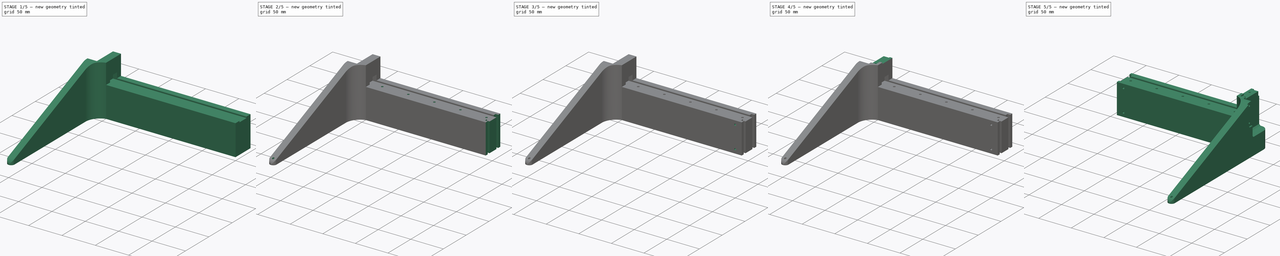
[diagram: build sequence overview — one tinted view per stage of 5, left to right]
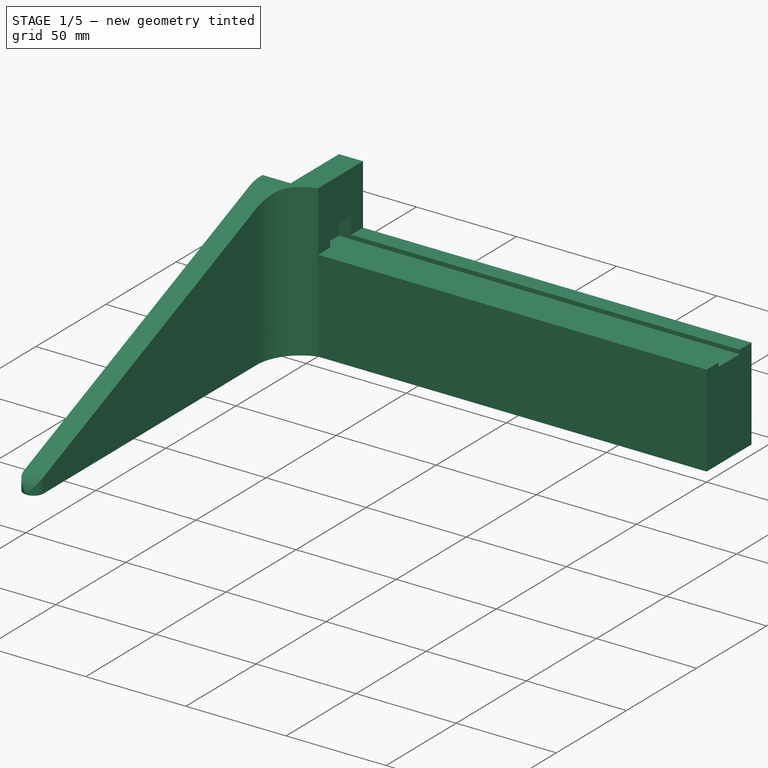
[diagram: stage 1 of 5 — iso view after this stage's code; geometry added in this stage tinted green]
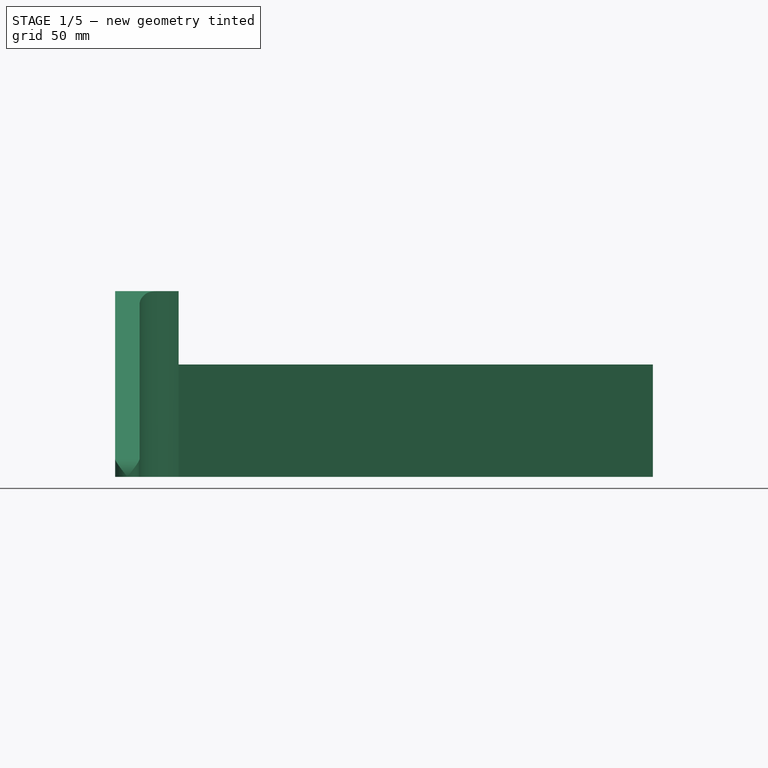
[diagram: stage 1 of 5 — front view after this stage's code; geometry added in this stage tinted green]
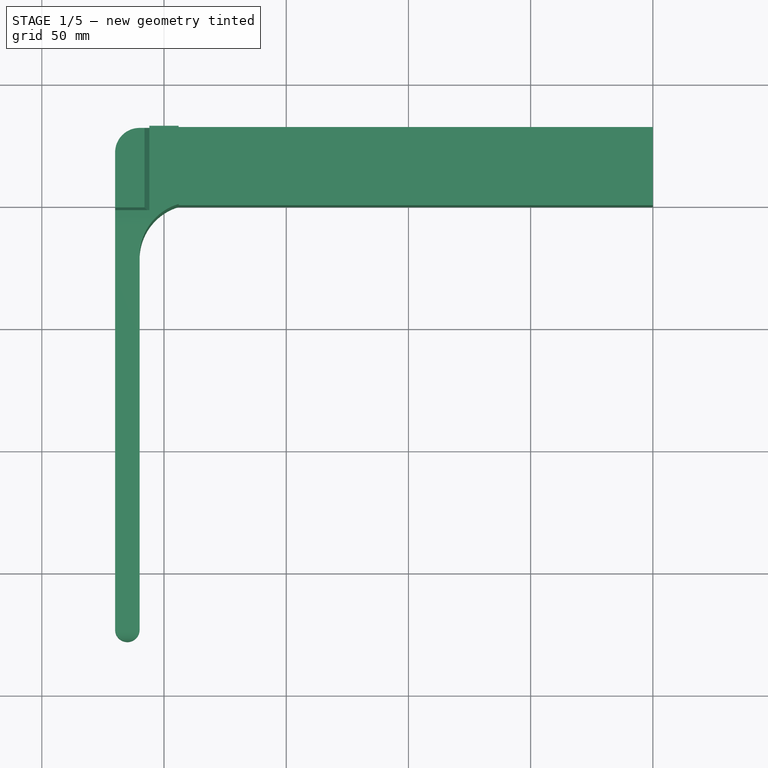
[diagram: stage 1 of 5 — top view after this stage's code; geometry added in this stage tinted green]
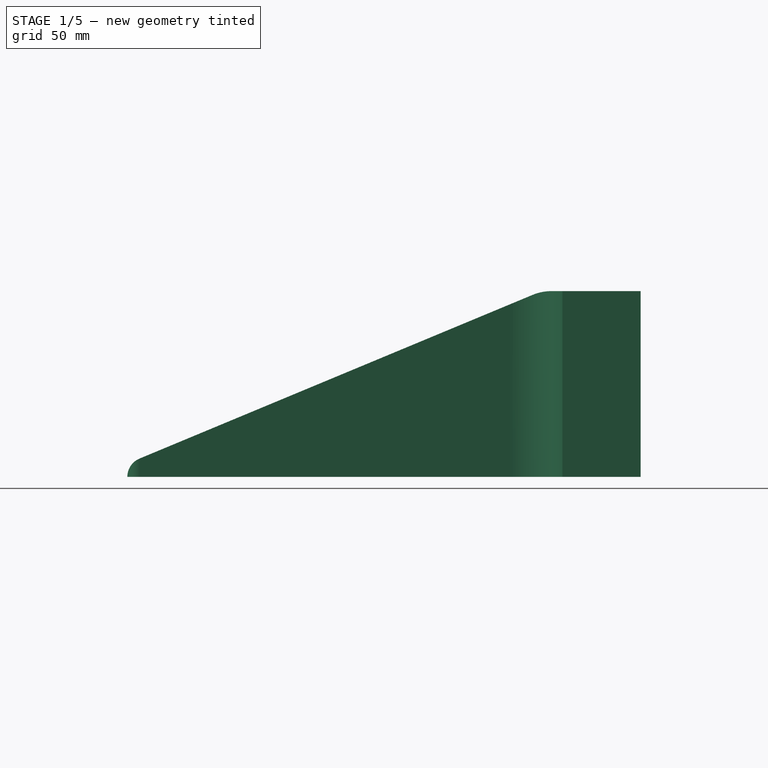
[diagram: stage 1 of 5 — right view after this stage's code; geometry added in this stage tinted green]
FCSTD DOCUMENT  (FreeCAD 0.18.3R)
Label: Base Right
License: All rights reserved
LicenseURL: http://en.wikipedia.org/wiki/All_rights_reserved
objects: Sketcher::SketchObject×20, PartDesign::Pocket×17, PartDesign::Pad×3, Spreadsheet::Sheet×1, PartDesign::Body×1, PartDesign::Chamfer×1, Part::Mirroring×1
note: 63 computed .brp shape members not serialized (recipe doc carries the construction recipe); baked Part::Feature solids carry a one-line shape summary decoded from their .brp

FEATURE [Sketcher::SketchObject] Sketch  label="Sketch Base"
  MapMode = 5
  Support = -> [XY_Plane]
  sketch-geometry (4):
    g0: LineSegment StartX=0 StartY=0 StartZ=0 EndX=0 EndY=32 EndZ=0
    g1: LineSegment StartX=0 StartY=32 StartZ=0 EndX=-210 EndY=32 EndZ=0
    g2: LineSegment StartX=-210 StartY=32 StartZ=0 EndX=-210 EndY=0 EndZ=0
    g3: LineSegment StartX=-210 StartY=0 StartZ=0 EndX=0 EndY=0 EndZ=0
  constraints (11):
    c: Coincident(g-1,g0)
    c: PointOnObject(g0,g-2)
    c: Coincident(g0,g1)
    c: Horizontal(g1)
    c: Coincident(g1,g2)
    c: PointOnObject(g2,g-1)
    c: Vertical(g2)
    c: Coincident(g2,g3)
    c: Coincident(g3,g0)
    c: Distance(g0) = 32
    c: Distance(g3) = 210
FEATURE [PartDesign::Pad] Pad  label="Base"
  Length = 46
  Length2 = 100
  Profile = -> Sketch
  Type = 0
FEATURE [Sketcher::SketchObject] Sketch001  label="Sketch Rail Cut"
  ExternalGeometry = -> [Pad]
  MapMode = 5
  Placement = pos=(0,0,46) rot=(0,0,1;0rad)
  Support = -> [Pad]
  sketch-geometry (6):
    g0: LineSegment StartX=-194 StartY=8.5 StartZ=0 EndX=0 EndY=8.5 EndZ=0
    g1: LineSegment StartX=0 StartY=23.5 StartZ=0 EndX=-194 EndY=23.5 EndZ=0
    g2: LineSegment StartX=-194 StartY=23.5 StartZ=0 EndX=-194 EndY=8.5 EndZ=0
    g3: LineSegment StartX=0 StartY=23.5 StartZ=0 EndX=0 EndY=8.5 EndZ=0
    g4: LineSegment [constr] StartX=0 StartY=23.5 StartZ=0 EndX=0 EndY=32 EndZ=0
    g5: LineSegment [constr] StartX=0 StartY=0 StartZ=0 EndX=0 EndY=8.5 EndZ=0
  constraints (16):
    c: PointOnObject(g0,g-2)
    c: Horizontal(g0)
    c: PointOnObject(g1,g-2)
    c: Horizontal(g1)
    c: Equal(g0,g1)
    c: Distance(g0,g1) = 15
    c: Distance(g0) = 194
    c: Coincident(g2,g1)
    c: Coincident(g2,g0)
    c: Coincident(g3,g1)
    c: Coincident(g3,g0)
    c: Coincident(g4,g1)
    c: Coincident(g4,g-3)
    c: Coincident(g5,g-1)
    c: Coincident(g5,g0)
    c: Equal(g4,g5)
FEATURE [Sketcher::SketchObject] Sketch002  label="Sketch Rail End"
  ExternalGeometry = -> [Pad]
  MapMode = 5
  Placement = pos=(0,0,46) rot=(0,0,1;0rad)
  Support = -> [Pad]
  sketch-geometry (4):
    g0: LineSegment StartX=-210 StartY=32 StartZ=0 EndX=-194 EndY=32 EndZ=0
    g1: LineSegment StartX=-194 StartY=32 StartZ=0 EndX=-194 EndY=0 EndZ=0
    g2: LineSegment StartX=-194 StartY=0 StartZ=0 EndX=-210 EndY=0 EndZ=0
    g3: LineSegment StartX=-210 StartY=0 StartZ=0 EndX=-210 EndY=32 EndZ=0
  constraints (11):
    c: Coincident(g0,g1)
    c: Coincident(g1,g2)
    c: Coincident(g2,g3)
    c: Coincident(g3,g0)
    c: Horizontal(g0)
    c: Horizontal(g2)
    c: Vertical(g1)
    c: Vertical(g3)
    c: Coincident(g0,g-3)
    c: PointOnObject(g2,g-1)
    c: Distance(g2) = 16
FEATURE [PartDesign::Pad] Pad002  label="Rail End"
  BaseFeature = -> Pad
  Length = 30
  Length2 = 100
  Profile = -> Sketch002
  Type = 0
FEATURE [PartDesign::Pocket] Pocket001  label="Rail Cut"
  BaseFeature = -> Pad002
  Length = 2
  Length2 = 100
  Profile = -> Sketch001
  Type = 0
FEATURE [Sketcher::SketchObject] Sketch003  label="Sketch Rail End Cut"
  ExternalGeometry = -> [Pocket001]
  MapMode = 5
  Placement = pos=(-194,0,0) rot=(0.57735,0.57735,0.57735;2.0944rad)
  Support = -> [Pocket001]
  sketch-geometry (4):
    g0: LineSegment StartX=8.5 StartY=44 StartZ=0 EndX=23.5 EndY=44 EndZ=0
    g1: LineSegment StartX=23.5 StartY=44 StartZ=0 EndX=23.5 EndY=54.2 EndZ=0
    g2: LineSegment StartX=23.5 StartY=54.2 StartZ=0 EndX=8.5 EndY=54.2 EndZ=0
    g3: LineSegment StartX=8.5 StartY=54.2 StartZ=0 EndX=8.5 EndY=44 EndZ=0
  constraints (10):
    c: Coincident(g0,g1)
    c: Coincident(g1,g2)
    c: Coincident(g2,g3)
    c: Coincident(g3,g0)
    c: Horizontal(g2)
    c: Vertical(g1)
    c: Vertical(g3)
    c: Coincident(g0,g-3)
    c: Coincident(g0,g-3)
    c: Distance(g1) = 10.2
FEATURE [PartDesign::Pocket] Pocket  label="Rail End Cut"
  BaseFeature = -> Pocket001
  Length = 6.2
  Length2 = 100
  Profile = -> Sketch003
  Type = 0
FEATURE [Spreadsheet::Sheet] Spreadsheet  label="Screws"
  cells = A1=Screw Type; B1=Length; D1=Diameter Loose; F1=Diameter Tight; H1=Width Across Flats; A2=M3 Tapping; B2=m3tl; C2(m3tl)==12mm; D2=m3tD; E2(m3tD)==3.4mm; F2=m3td; G2(m3td)==2.8mm; A3=M3x30; B3=m3l; C3(m3l)==30mm; D3=m3D; E3(m3D)==3.2mm; F3=m3d; G3(m3d)==2.8mm; A4=M3 Nut; H4=m3S; I4(m3S)==5.6mm
FEATURE [PartDesign::Body] Body  label="Base Left"
  Group = -> [Sketch,Pad,Sketch001,Sketch002,Pad002,Pocket001,Sketch003,Pocket,Sketch005,Sketch006,Pad003,Pocket002,Sketch007,Pocket003,Chamfer,Sketch008,Pocket004,Sketch009,Pocket005,Sketch010,Pocket006,Sketch011,Pocket007,Sketch012,Pocket008,Sketch013,Pocket009,Sketch014,Pocket010,Sketch015,Pocket011,Sketch027,Pocket012,Sketch028,Pocket013,Sketch029,Pocket014,Sketch030,Pocket015,Sketch031,Pocket016]
  Origin = -> Origin
  Tip = -> Pocket016
FEATURE [Sketcher::SketchObject] Sketch005  label="Sketch Motor Cut"
  ExternalGeometry = -> [Pocket]
  MapMode = 5
  Placement = pos=(0,0,76) rot=(0,0,1;0rad)
  Support = -> [Pad003]
  sketch-geometry (6):
    g0: LineSegment StartX=-253 StartY=44.5 StartZ=0 EndX=-206 EndY=44.5 EndZ=0
    g1: LineSegment StartX=-206 StartY=44.5 StartZ=0 EndX=-206 EndY=-2.5 EndZ=0
    g2: LineSegment StartX=-206 StartY=-2.5 StartZ=0 EndX=-253 EndY=-2.5 EndZ=0
    g3: LineSegment StartX=-253 StartY=-2.5 StartZ=0 EndX=-253 EndY=44.5 EndZ=0
    g4: LineSegment [constr] StartX=-206 StartY=16 StartZ=0 EndX=-194 EndY=16 EndZ=0
    g5: LineSegment [constr] StartX=-206 StartY=21 StartZ=0 EndX=-194 EndY=21 EndZ=0
  constraints (18):
    c: Coincident(g0,g1)
    c: Coincident(g1,g2)
    c: Coincident(g2,g3)
    c: Coincident(g3,g0)
    c: Horizontal(g0)
    c: Horizontal(g2)
    c: Vertical(g1)
    c: Vertical(g3)
    c: Distance(g3) = 47
    c: Distance(g-3,g1) = 12
    c: Equal(g0,g3)
    c: PointOnObject(g4,g1)
    c: PointOnObject(g5,g1)
    c: PointOnObject(g5,g-3)
    c: Symmetric(g-3,g-3,g4)
    c: Symmetric(g1,g0,g5)
    c: PointOnObject(g4,g-3)
    c: Distance(g5,g4) = 5
FEATURE [Sketcher::SketchObject] Sketch006  label="Sketch Base Leg"
  ExternalGeometry = -> [Pocket,Sketch005]
  MapMode = 5
  Support = -> [XY_Plane]
  sketch-geometry (8):
    g0: ArcOfCircle CenterX=-210 CenterY=22 CenterZ=0 NormalX=0 NormalY=0 NormalZ=1 AngleXU=0 Radius=10 StartAngle=1.5708 EndAngle=3.14159
    g1: LineSegment StartX=-220 StartY=22 StartZ=0 EndX=-220 EndY=-173 EndZ=0
    g2: LineSegment StartX=-210 StartY=-173 StartZ=0 EndX=-210 EndY=-21.386 EndZ=0
    g3: LineSegment StartX=-210 StartY=32 StartZ=0 EndX=-210 EndY=0 EndZ=0
    g4: LineSegment StartX=-210 StartY=0 StartZ=0 EndX=-194 EndY=-7.1e-15 EndZ=0
    g5: ArcOfCircle CenterX=-187.708 CenterY=-21.386 CenterZ=0 NormalX=0 NormalY=0 NormalZ=1 AngleXU=0 Radius=22.2925 StartAngle=1.85696 EndAngle=3.14159
    g6: LineSegment [constr] StartX=-206 StartY=-2.5 StartZ=0 EndX=-203.217 EndY=-5.37321 EndZ=0
    g7: ArcOfCircle CenterX=-215 CenterY=-173 CenterZ=0 NormalX=0 NormalY=0 NormalZ=1 AngleXU=0 Radius=5 StartAngle=3.14159 EndAngle=6.28319
  constraints (22):
    c: PointOnObject(g0,g-3)
    c: Coincident(g0,g-5)
    c: Horizontal(g0,g0)
    c: Distance(g0,g0) = 10
    c: Tangent(g0,g1) = -1.5708
    c: Vertical(g2)
    c: Distance(g1) = 195
    c: Vertical(g2,g-4)
    c: Coincident(g3,g0)
    c: Coincident(g3,g-4)
    c: Coincident(g4,g3)
    c: Coincident(g5,g4)
    c: Coincident(g4,g-4)
    c: Tangent(g5,g2) = 1.5708
    c: Coincident(g6,g-6)
    c: PointOnObject(g6,g5)
    c: Perpendicular(g5,g6)
    c: Distance(g6) = 4
    c: Coincident(g7,g1)
    c: Coincident(g7,g2)
    c: Horizontal(g1,g7)
    c: Horizontal(g7,g2)
FEATURE [PartDesign::Pad] Pad003  label="Base Leg"
  BaseFeature = -> Pocket
  Length = 10
  Length2 = 100
  Profile = -> Sketch006
  Type = 3
  UpToFace = -> Pocket [Face18]
FEATURE [PartDesign::Pocket] Pocket002  label="Motor Cut"
  BaseFeature = -> Pad003
  Length = 50
  Length2 = 100
  Profile = -> Sketch005
  Type = 0
FEATURE [Sketcher::SketchObject] Sketch007  label="Sketch Leg Profile Cut"
  ExternalGeometry = -> [Pocket002]
  MapMode = 5
  Placement = pos=(-220,0,0) rot=(0.57735,-0.57735,-0.57735;2.0944rad)
  Support = -> [Pocket002]
  sketch-geometry (5):
    g0: LineSegment StartX=178 StartY=76 StartZ=0 EndX=178 EndY=0 EndZ=0
    g1: ArcOfCircle CenterX=169.878 CenterY=0 CenterZ=0 NormalX=0 NormalY=0 NormalZ=1 AngleXU=0 Radius=8.12242 StartAngle=0 EndAngle=1.17622
    g2: LineSegment StartX=12.1884 StartY=74.4632 StartZ=0 EndX=173 EndY=7.49828 EndZ=0
    g3: LineSegment StartX=178 StartY=76 StartZ=0 EndX=4.5 EndY=76 EndZ=0
    g4: ArcOfCircle CenterX=4.5 CenterY=56 CenterZ=0 NormalX=0 NormalY=0 NormalZ=1 AngleXU=0 Radius=20 StartAngle=1.17622 EndAngle=1.5708
  constraints (14):
    c: PointOnObject(g0,g-1)
    c: Vertical(g0)
    c: PointOnObject(g1,g-1)
    c: Coincident(g1,g0)
    c: Tangent(g2,g1) = 1.5708
    c: PointOnObject(g1,g-4)
    c: Coincident(g3,g0)
    c: PointOnObject(g3,g-3)
    c: Horizontal(g3)
    c: Tangent(g4,g2) = 1.5708
    c: Tangent(g4,g3) = -1.5708
    c: Radius(g4) = 20
    c: Distance(g-3,g3) = 2
    c: Distance(g-4,g0) = 5
FEATURE [PartDesign::Pocket] Pocket003  label="Leg Profile Cut"
  BaseFeature = -> Pocket002
  Length = 10
  Length2 = 100
  Profile = -> Sketch007
  Type = 1
FEATURE [PartDesign::Chamfer] Chamfer  label="Motor Cut Chamfer"
  Base = -> Pocket003 [Edge39,Edge38]
  BaseFeature = -> Pocket003
  Size = 2
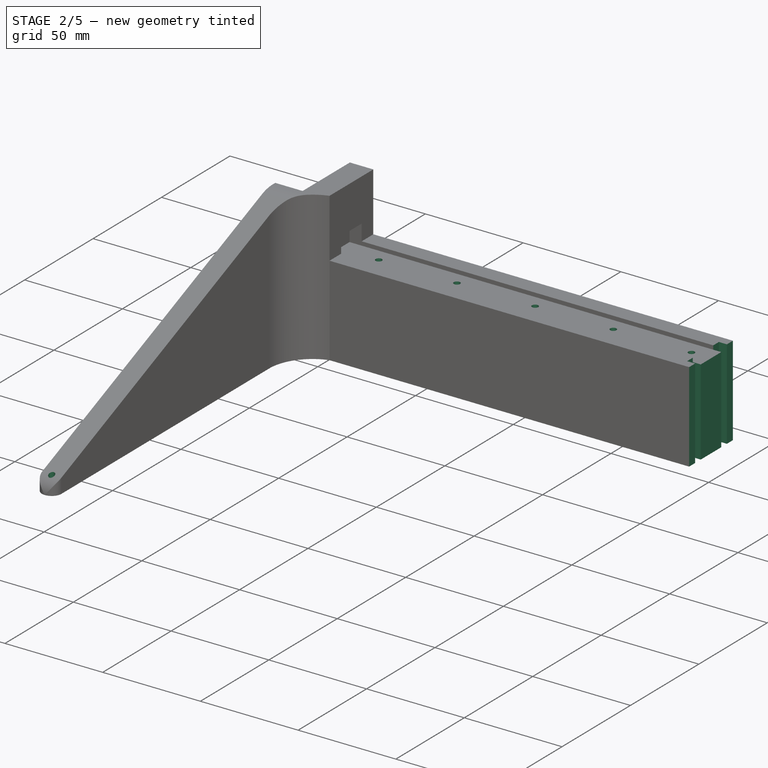
[diagram: stage 2 of 5 — iso view after this stage's code; geometry added in this stage tinted green]
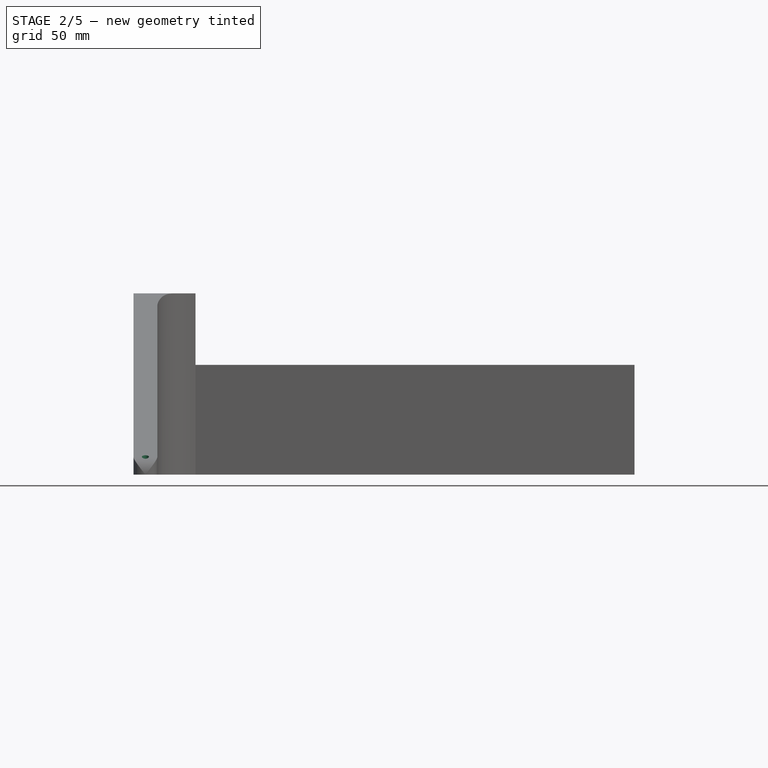
[diagram: stage 2 of 5 — front view after this stage's code; geometry added in this stage tinted green]
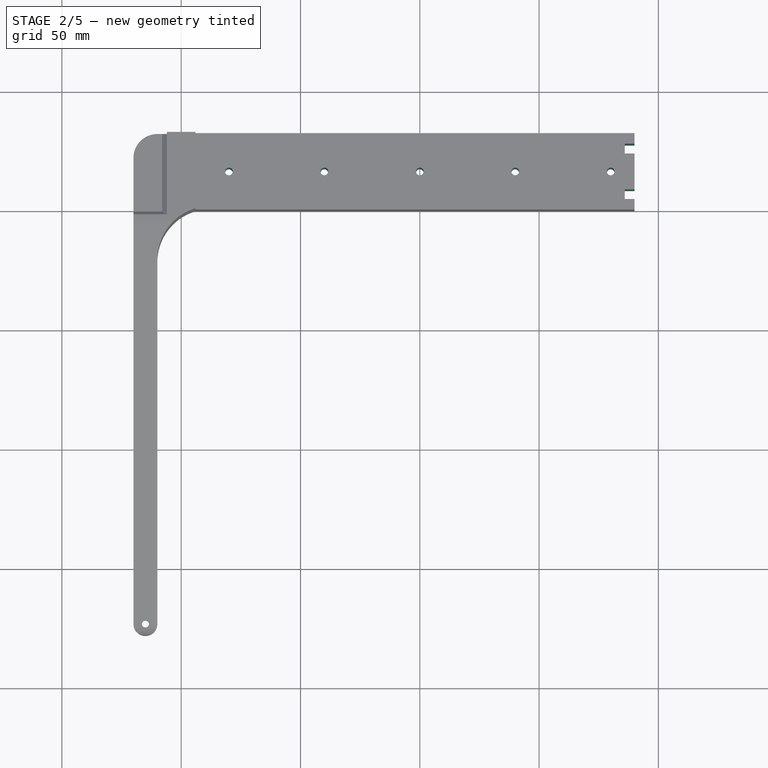
[diagram: stage 2 of 5 — top view after this stage's code; geometry added in this stage tinted green]
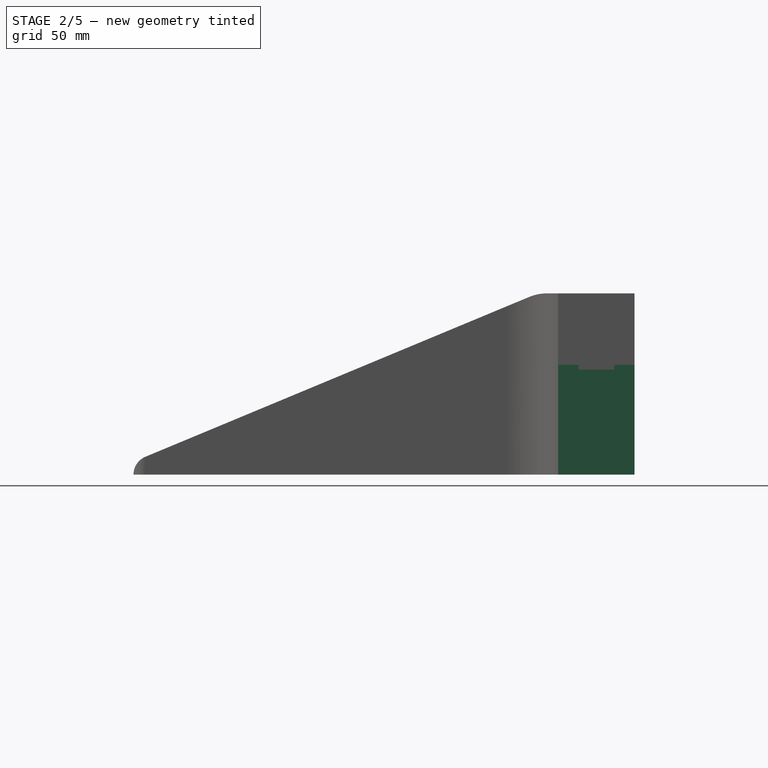
[diagram: stage 2 of 5 — right view after this stage's code; geometry added in this stage tinted green]
FEATURE [Sketcher::SketchObject] Sketch008  label="Sketch Rail Screw Holes"
  ExternalGeometry = -> [Chamfer]
  MapMode = 5
  Placement = pos=(0,0,44) rot=(0,0,1;0rad)
  Support = -> [Chamfer]
  expr: Constraints[20] = Screws.m3D
  sketch-geometry (9):
    g0: Circle CenterX=-20 CenterY=16 CenterZ=0 NormalX=0 NormalY=0 NormalZ=1 AngleXU=0 Radius=1.6
    g1: Circle CenterX=-60 CenterY=16 CenterZ=0 NormalX=0 NormalY=0 NormalZ=1 AngleXU=0 Radius=1.6
    g2: Circle CenterX=-100 CenterY=16 CenterZ=0 NormalX=0 NormalY=0 NormalZ=1 AngleXU=0 Radius=1.6
    g3: Circle CenterX=-140 CenterY=16 CenterZ=0 NormalX=0 NormalY=0 NormalZ=1 AngleXU=0 Radius=1.6
    g4: Circle CenterX=-180 CenterY=16 CenterZ=0 NormalX=0 NormalY=0 NormalZ=1 AngleXU=0 Radius=1.6
    g5: LineSegment [constr] StartX=-180 StartY=16 StartZ=0 EndX=-140 EndY=16 EndZ=0
    g6: LineSegment [constr] StartX=-140 StartY=16 StartZ=0 EndX=-100 EndY=16 EndZ=0
    g7: LineSegment [constr] StartX=-100 StartY=16 StartZ=0 EndX=-60 EndY=16 EndZ=0
    g8: LineSegment [constr] StartX=-60 StartY=16 StartZ=0 EndX=-20 EndY=16 EndZ=0
  constraints (22):
    c: Horizontal(g4,g3)
    c: Horizontal(g3,g2)
    c: Horizontal(g2,g1)
    c: Equal(g4,g3)
    c: Equal(g3,g2)
    c: Equal(g2,g1)
    c: Equal(g1,g0)
    c: Coincident(g5,g4)
    c: Coincident(g5,g3)
    c: Coincident(g6,g3)
    c: Coincident(g6,g2)
    c: Coincident(g7,g2)
    c: Coincident(g7,g1)
    c: Coincident(g8,g1)
    c: Coincident(g8,g0)
    c: Equal(g8,g7)
    c: Equal(g7,g6)
    c: Equal(g6,g5)
    c: Distance(g0,g-2) = 20
    c: Distance(g8) = 40
    c: Diameter(g0) = 3.2
    c: Symmetric(g-4,g-3,g8)
FEATURE [PartDesign::Pocket] Pocket004  label="Rail Screw Holes"
  BaseFeature = -> Chamfer
  Length = 5
  Length2 = 100
  Profile = -> Sketch008
  Type = 1
FEATURE [Sketcher::SketchObject] Sketch009  label="Sketch Nut Cuts"
  ExternalGeometry = -> [Pocket004]
  MapMode = 5
  Placement = pos=(0,0,0) rot=(1,0,0;3.14159rad)
  Support = -> [Pocket004]
  expr: Constraints[99] = Screws.m3S
  sketch-geometry (35):
    g0: LineSegment StartX=-183.233 StartY=-16 StartZ=0 EndX=-181.617 EndY=-18.8 EndZ=0
    g1: LineSegment StartX=-181.617 StartY=-18.8 StartZ=0 EndX=-178.383 EndY=-18.8 EndZ=0
    g2: LineSegment StartX=-178.383 StartY=-18.8 StartZ=0 EndX=-176.767 EndY=-16 EndZ=0
    g3: LineSegment StartX=-176.767 StartY=-16 StartZ=0 EndX=-178.383 EndY=-13.2 EndZ=0
    g4: LineSegment StartX=-178.383 StartY=-13.2 StartZ=0 EndX=-181.617 EndY=-13.2 EndZ=0
    g5: LineSegment StartX=-181.617 StartY=-13.2 StartZ=0 EndX=-183.233 EndY=-16 EndZ=0
    g6: Circle [constr] CenterX=-180 CenterY=-16 CenterZ=0 NormalX=0 NormalY=0 NormalZ=1 AngleXU=0 Radius=3.23316
    g7: LineSegment StartX=-143.233 StartY=-16 StartZ=0 EndX=-141.617 EndY=-18.8 EndZ=0
    g8: LineSegment StartX=-141.617 StartY=-18.8 StartZ=0 EndX=-138.383 EndY=-18.8 EndZ=0
    g9: LineSegment StartX=-138.383 StartY=-18.8 StartZ=0 EndX=-136.767 EndY=-16 EndZ=0
    g10: LineSegment StartX=-136.767 StartY=-16 StartZ=0 EndX=-138.383 EndY=-13.2 EndZ=0
    g11: LineSegment StartX=-138.383 StartY=-13.2 StartZ=0 EndX=-141.617 EndY=-13.2 EndZ=0
    g12: LineSegment StartX=-141.617 StartY=-13.2 StartZ=0 EndX=-143.233 EndY=-16 EndZ=0
    g13: Circle [constr] CenterX=-140 CenterY=-16 CenterZ=0 NormalX=0 NormalY=0 NormalZ=1 AngleXU=0 Radius=3.23316
    g14: LineSegment StartX=-103.233 StartY=-16 StartZ=0 EndX=-101.617 EndY=-18.8 EndZ=0
    g15: LineSegment StartX=-101.617 StartY=-18.8 StartZ=0 EndX=-98.3834 EndY=-18.8 EndZ=0
    g16: LineSegment StartX=-98.3834 StartY=-18.8 StartZ=0 EndX=-96.7668 EndY=-16 EndZ=0
    g17: LineSegment StartX=-96.7668 StartY=-16 StartZ=0 EndX=-98.3834 EndY=-13.2 EndZ=0
    g18: LineSegment StartX=-98.3834 StartY=-13.2 StartZ=0 EndX=-101.617 EndY=-13.2 EndZ=0
    g19: LineSegment StartX=-101.617 StartY=-13.2 StartZ=0 EndX=-103.233 EndY=-16 EndZ=0
    g20: Circle [constr] CenterX=-100 CenterY=-16 CenterZ=0 NormalX=0 NormalY=0 NormalZ=1 AngleXU=0 Radius=3.23316
    g21: LineSegment StartX=-63.2332 StartY=-16 StartZ=0 EndX=-61.6166 EndY=-18.8 EndZ=0
    g22: LineSegment StartX=-61.6166 StartY=-18.8 StartZ=0 EndX=-58.3834 EndY=-18.8 EndZ=0
    g23: LineSegment StartX=-58.3834 StartY=-18.8 StartZ=0 EndX=-56.7668 EndY=-16 EndZ=0
    g24: LineSegment StartX=-56.7668 StartY=-16 StartZ=0 EndX=-58.3834 EndY=-13.2 EndZ=0
    g25: LineSegment StartX=-58.3834 StartY=-13.2 StartZ=0 EndX=-61.6166 EndY=-13.2 EndZ=0
    g26: LineSegment StartX=-61.6166 StartY=-13.2 StartZ=0 EndX=-63.2332 EndY=-16 EndZ=0
    g27: Circle [constr] CenterX=-60 CenterY=-16 CenterZ=0 NormalX=0 NormalY=0 NormalZ=1 AngleXU=0 Radius=3.23316
    g28: LineSegment StartX=-23.2332 StartY=-16 StartZ=0 EndX=-21.6166 EndY=-18.8 EndZ=0
    g29: LineSegment StartX=-21.6166 StartY=-18.8 StartZ=0 EndX=-18.3834 EndY=-18.8 EndZ=0
    g30: LineSegment StartX=-18.3834 StartY=-18.8 StartZ=0 EndX=-16.7668 EndY=-16 EndZ=0
    g31: LineSegment StartX=-16.7668 StartY=-16 StartZ=0 EndX=-18.3834 EndY=-13.2 EndZ=0
    g32: LineSegment StartX=-18.3834 StartY=-13.2 StartZ=0 EndX=-21.6166 EndY=-13.2 EndZ=0
    g33: LineSegment StartX=-21.6166 StartY=-13.2 StartZ=0 EndX=-23.2332 EndY=-16 EndZ=0
    g34: Circle [constr] CenterX=-20 CenterY=-16 CenterZ=0 NormalX=0 NormalY=0 NormalZ=1 AngleXU=0 Radius=3.23316
  constraints (80):
    c: Coincident(g0,g1)
    c: Coincident(g1,g2)
    c: Coincident(g2,g3)
    c: Coincident(g3,g4)
    c: Coincident(g4,g5)
    c: Coincident(g5,g0)
    c: Equal(g0, g1-g5) x5
    c: PointOnObject(g0,g6)
    c: PointOnObject(g1,g6)
    c: PointOnObject(g2,g6)
    c: PointOnObject(g3,g6)
    c: PointOnObject(g4,g6)
    c: PointOnObject(g5,g6)
    c: Coincident(g6,g-3)
    c: Coincident(g7,g8)
    c: Coincident(g8,g9)
    c: Coincident(g9,g10)
    c: Coincident(g10,g11)
    c: Coincident(g11,g12)
    c: Coincident(g12,g7)
    c: Equal(g7, g8-g12) x5
    c: PointOnObject(g7,g13)
    c: PointOnObject(g8,g13)
    c: PointOnObject(g9,g13)
    c: PointOnObject(g10,g13)
    c: PointOnObject(g11,g13)
    c: PointOnObject(g12,g13)
    c: Coincident(g13,g-4)
    c: Coincident(g14,g15)
    c: Coincident(g15,g16)
    c: Coincident(g16,g17)
    c: Coincident(g17,g18)
    c: Coincident(g18,g19)
    c: Coincident(g19,g14)
    c: Equal(g14, g15-g19) x5
    c: PointOnObject(g14,g20)
    c: PointOnObject(g15,g20)
    c: PointOnObject(g16,g20)
    c: PointOnObject(g17,g20)
    c: PointOnObject(g18,g20)
    c: PointOnObject(g19,g20)
    c: Coincident(g20,g-5)
    c: Coincident(g21,g22)
    c: Coincident(g22,g23)
    c: Coincident(g23,g24)
    c: Coincident(g24,g25)
    c: Coincident(g25,g26)
    c: Coincident(g26,g21)
    c: Equal(g21, g22-g26) x5
    c: PointOnObject(g21,g27)
    c: PointOnObject(g22,g27)
    c: PointOnObject(g23,g27)
    c: PointOnObject(g24,g27)
    c: PointOnObject(g25,g27)
    c: PointOnObject(g26,g27)
    c: Coincident(g27,g-6)
    c: Coincident(g28,g29)
    c: Coincident(g29,g30)
    c: Coincident(g30,g31)
    c: Coincident(g31,g32)
    c: Coincident(g32,g33)
    c: Coincident(g33,g28)
    c: Equal(g28, g29-g33) x5
    c: PointOnObject(g28,g34)
    c: PointOnObject(g29,g34)
    c: PointOnObject(g30,g34)
    c: PointOnObject(g31,g34)
    c: PointOnObject(g32,g34)
    c: PointOnObject(g33,g34)
    c: Coincident(g34,g-7)
    c: Horizontal(g1)
    c: Horizontal(g8)
    c: Horizontal(g15)
    c: Horizontal(g22)
    c: Horizontal(g29)
    c: Equal(g29,g22)
    c: Equal(g22,g15)
    c: Equal(g15,g8)
    c: Equal(g8,g1)
    c: Distance(g4,g1) = 5.6
FEATURE [PartDesign::Pocket] Pocket005  label="Nut Cuts"
  BaseFeature = -> Pocket004
  Length = 3
  Length2 = 100
  Profile = -> Sketch009
  Type = 0
FEATURE [Sketcher::SketchObject] Sketch010  label="Sketch Middle Cut"
  ExternalGeometry = -> [Pocket005]
  MapMode = 5
  Placement = pos=(0,0,0) rot=(1,0,0;3.14159rad)
  Support = -> [Pocket005]
  sketch-geometry (12):
    g0: LineSegment StartX=0 StartY=0 StartZ=0 EndX=0 EndY=-32 EndZ=0
    g1: LineSegment StartX=0 StartY=-32 StartZ=0 EndX=-10 EndY=-32 EndZ=0
    g2: LineSegment StartX=-10 StartY=-32 StartZ=0 EndX=-10 EndY=-27.6 EndZ=0
    g3: LineSegment StartX=-10 StartY=-27.6 StartZ=0 EndX=-14.1 EndY=-27.6 EndZ=0
    g4: LineSegment StartX=-14.1 StartY=-27.6 StartZ=0 EndX=-14.1 EndY=-23.5 EndZ=0
    g5: LineSegment StartX=-14.1 StartY=-23.5 StartZ=0 EndX=-10 EndY=-23.5 EndZ=0
    g6: LineSegment StartX=-10 StartY=-23.5 StartZ=0 EndX=-10 EndY=-8.5 EndZ=0
    g7: LineSegment StartX=-10 StartY=-8.5 StartZ=0 EndX=-14.1 EndY=-8.5 EndZ=0
    g8: LineSegment StartX=-14.1 StartY=-8.5 StartZ=0 EndX=-14.1 EndY=-4.4 EndZ=0
    g9: LineSegment StartX=-14.1 StartY=-4.4 StartZ=0 EndX=-10 EndY=-4.4 EndZ=0
    g10: LineSegment StartX=-10 StartY=-4.4 StartZ=0 EndX=-10 EndY=0 EndZ=0
    g11: LineSegment StartX=-10 StartY=0 StartZ=0 EndX=0 EndY=0 EndZ=0
  constraints (34):
    c: Coincident(g-1,g0)
    c: Coincident(g0,g-3)
    c: Coincident(g0,g1)
    c: PointOnObject(g1,g-3)
    c: Coincident(g1,g2)
    c: Vertical(g2)
    c: Coincident(g2,g3)
    c: Horizontal(g3)
    c: Coincident(g3,g4)
    c: Vertical(g4)
    c: Coincident(g4,g5)
    c: Horizontal(g5)
    c: Coincident(g5,g6)
    c: Vertical(g6)
    c: Coincident(g6,g7)
    c: Horizontal(g7)
    c: Coincident(g7,g8)
    c: Vertical(g8)
    c: Coincident(g8,g9)
    c: Horizontal(g9)
    c: Coincident(g9,g10)
    c: PointOnObject(g10,g-1)
    c: Vertical(g10)
    c: Coincident(g10,g11)
    c: Coincident(g11,g0)
    c: Vertical(g9,g6)
    c: Vertical(g6,g2)
    c: Vertical(g7,g4)
    c: Equal(g8,g4)
    c: Equal(g10,g2)
    c: Distance(g1) = 10
    c: Distance(g4) = 4.1
    c: Equal(g4,g3)
    c: Distance(g6) = 15
FEATURE [PartDesign::Pocket] Pocket006  label="Middle Cut"
  BaseFeature = -> Pocket005
  Length = 5
  Length2 = 100
  Profile = -> Sketch010
  Type = 1
FEATURE [Sketcher::SketchObject] Sketch011  label="Sketch Bottom Stand Holes"
  ExternalGeometry = -> [Pocket006]
  MapMode = 5
  Placement = pos=(0,0,0) rot=(1,0,0;3.14159rad)
  Support = -> [Pocket006]
  sketch-geometry (2):
    g0: Circle CenterX=-215 CenterY=173 CenterZ=0 NormalX=0 NormalY=0 NormalZ=1 AngleXU=0 Radius=1.5
    g1: Circle CenterX=-210 CenterY=-22 CenterZ=0 NormalX=0 NormalY=0 NormalZ=1 AngleXU=0 Radius=1.5
  constraints (4):
    c: Coincident(g0,g-3)
    c: Coincident(g1,g-4)
    c: Equal(g1,g0)
    c: Diameter(g0) = 3
FEATURE [PartDesign::Pocket] Pocket007  label="Bottom Stand Holes"
  BaseFeature = -> Pocket006
  Length = 25.6
  Length2 = 100
  Profile = -> Sketch011
  Type = 0
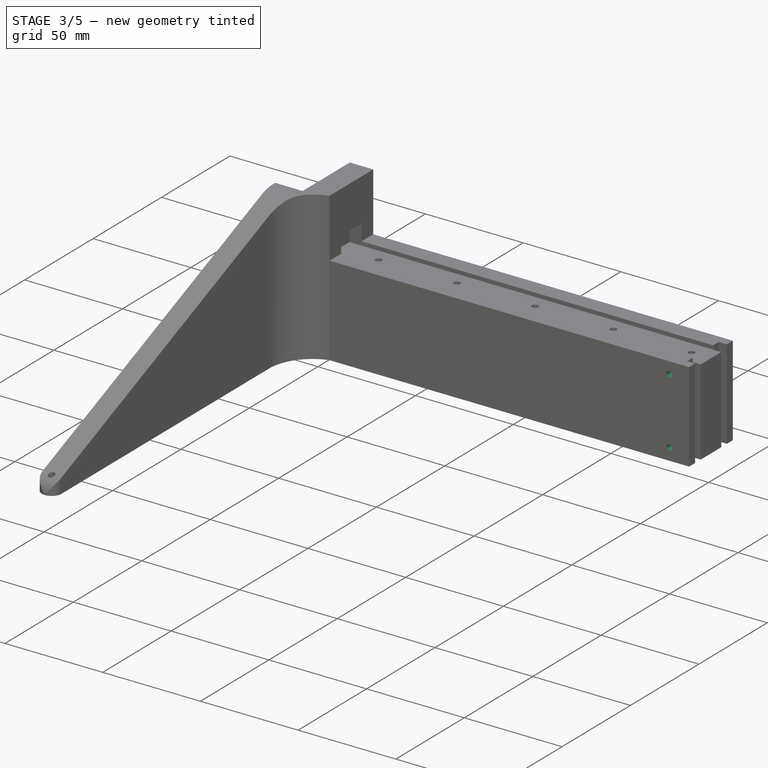
[diagram: stage 3 of 5 — iso view after this stage's code; geometry added in this stage tinted green]
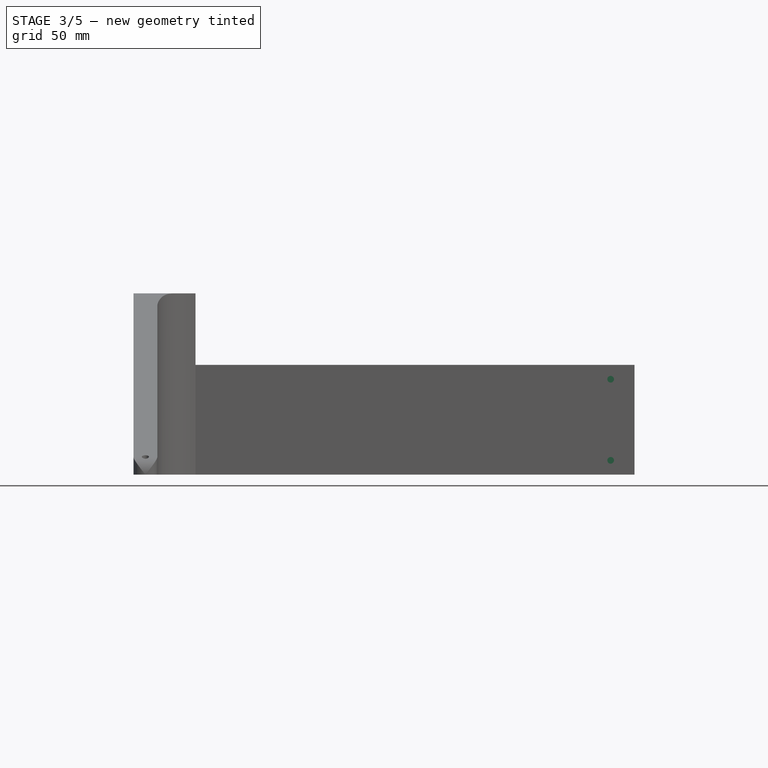
[diagram: stage 3 of 5 — front view after this stage's code; geometry added in this stage tinted green]
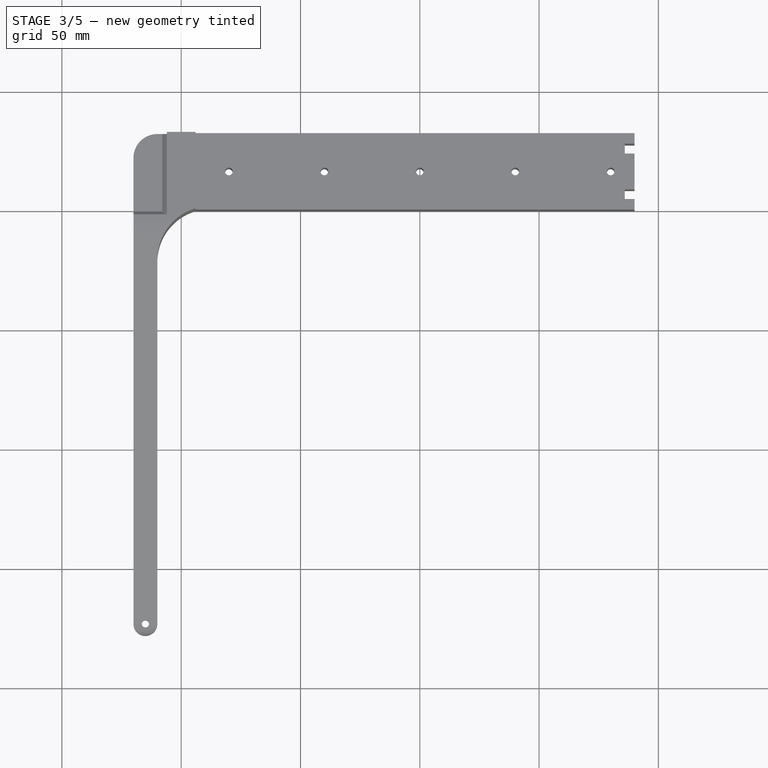
[diagram: stage 3 of 5 — top view after this stage's code; geometry added in this stage tinted green]
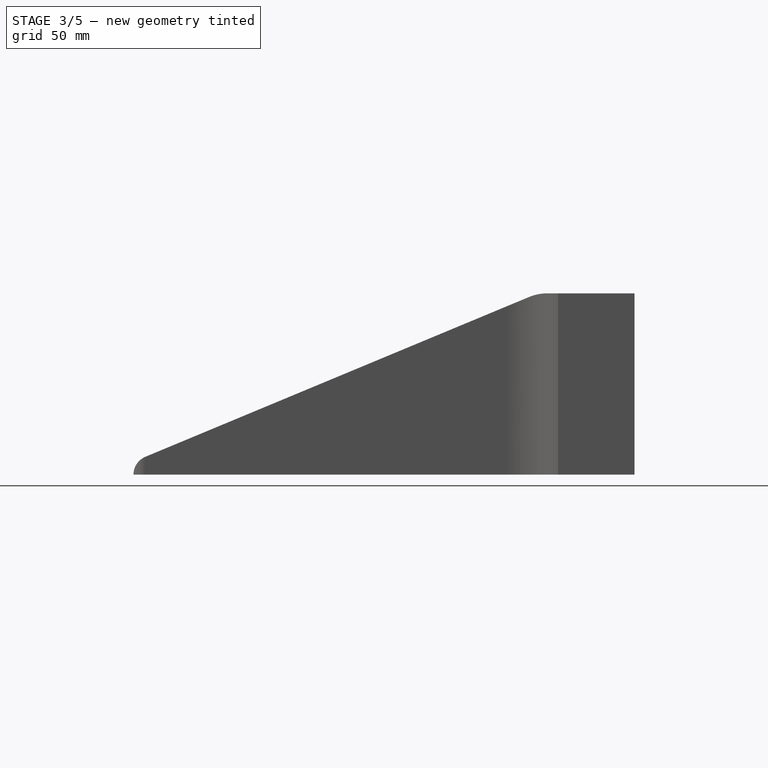
[diagram: stage 3 of 5 — right view after this stage's code; geometry added in this stage tinted green]
FEATURE [Sketcher::SketchObject] Sketch012  label="Sketch Middle Holes Back"
  ExternalGeometry = -> [Pocket007]
  MapMode = 5
  Placement = pos=(0,32,0) rot=(0,0.707107,0.707107;3.14159rad)
  Support = -> [Pocket007]
  expr: Constraints[10] = Screws.m3td
  sketch-geometry (4):
    g0: Circle CenterX=20 CenterY=40 CenterZ=0 NormalX=0 NormalY=0 NormalZ=1 AngleXU=0 Radius=1.4
    g1: Circle CenterX=20 CenterY=6 CenterZ=0 NormalX=0 NormalY=0 NormalZ=1 AngleXU=0 Radius=1.4
    g2: LineSegment [constr] StartX=20 StartY=40 StartZ=0 EndX=20 EndY=46 EndZ=0
    g3: LineSegment [constr] StartX=20 StartY=6 StartZ=0 EndX=20 EndY=0 EndZ=0
  constraints (12):
    c: Vertical(g0,g1)
    c: Equal(g1,g0)
    c: Coincident(g2,g0)
    c: PointOnObject(g2,g-4)
    c: Vertical(g2)
    c: Coincident(g3,g1)
    c: PointOnObject(g3,g-1)
    c: Vertical(g3)
    c: Equal(g3,g2)
    c: Distance(g0,g1) = 34
    c: Diameter(g1) = 2.8
    c: DistanceX(g-1,g1) = 20
FEATURE [PartDesign::Pocket] Pocket008  label="Middle Holes Back"
  BaseFeature = -> Pocket007
  Length = 11
  Length2 = 100
  Profile = -> Sketch012
  Type = 0
  expr: Length = Screws.m3tl - 1mm
FEATURE [Sketcher::SketchObject] Sketch013  label="Sketch Middle Holes Front"
  ExternalGeometry = -> [Pocket008]
  MapMode = 5
  Placement = pos=(0,0,0) rot=(1,0,0;1.5708rad)
  Support = -> [Pocket008]
  expr: Constraints[9] = Screws.m3td
  sketch-geometry (4):
    g0: Circle CenterX=-20 CenterY=40 CenterZ=0 NormalX=0 NormalY=0 NormalZ=1 AngleXU=0 Radius=1.4
    g1: Circle CenterX=-20 CenterY=6 CenterZ=0 NormalX=0 NormalY=0 NormalZ=1 AngleXU=0 Radius=1.4
    g2: LineSegment [constr] StartX=-20 StartY=40 StartZ=0 EndX=-20 EndY=46 EndZ=0
    g3: LineSegment [constr] StartX=-20 StartY=6 StartZ=0 EndX=-20 EndY=0 EndZ=0
  constraints (12):
    c: Equal(g0,g1)
    c: Vertical(g1,g0)
    c: Coincident(g2,g0)
    c: Vertical(g2)
    c: Coincident(g3,g1)
    c: PointOnObject(g3,g-1)
    c: Vertical(g3)
    c: Equal(g3,g2)
    c: Distance(g1,g0) = 34
    c: Diameter(g0) = 2.8
    c: DistanceX(g1,g-1) = 20
    c: Horizontal(g2,g-4)
FEATURE [PartDesign::Pocket] Pocket009  label="Middle Holes Front"
  BaseFeature = -> Pocket008
  Length = 11
  Length2 = 100
  Profile = -> Sketch013
  Type = 0
  expr: Length = Screws.m3tl - 1mm
FEATURE [Sketcher::SketchObject] Sketch014  label="Sketch Motor Mount Holes Back"
  ExternalGeometry = -> [Pocket009]
  MapMode = 5
  Placement = pos=(0,32,0) rot=(0,0.707107,0.707107;3.14159rad)
  Support = -> [Pocket009]
  expr: Constraints[5] = Screws.m3td
  sketch-geometry (2):
    g0: Circle CenterX=202 CenterY=71 CenterZ=0 NormalX=0 NormalY=0 NormalZ=1 AngleXU=0 Radius=1.4
    g1: Circle CenterX=202 CenterY=37 CenterZ=0 NormalX=0 NormalY=0 NormalZ=1 AngleXU=0 Radius=1.4
  constraints (6):
    c: Equal(g0,g1)
    c: Vertical(g1,g0)
    c: DistanceX(g0,g-3) = 4
    c: DistanceY(g0,g-3) = 5
    c: Distance(g0,g1) = 34
    c: Diameter(g0) = 2.8
FEATURE [PartDesign::Pocket] Pocket010  label="Motor Mount Holes Back"
  BaseFeature = -> Pocket009
  Length = 11
  Length2 = 100
  Profile = -> Sketch014
  Type = 0
  expr: Length = Screws.m3tl - 1mm
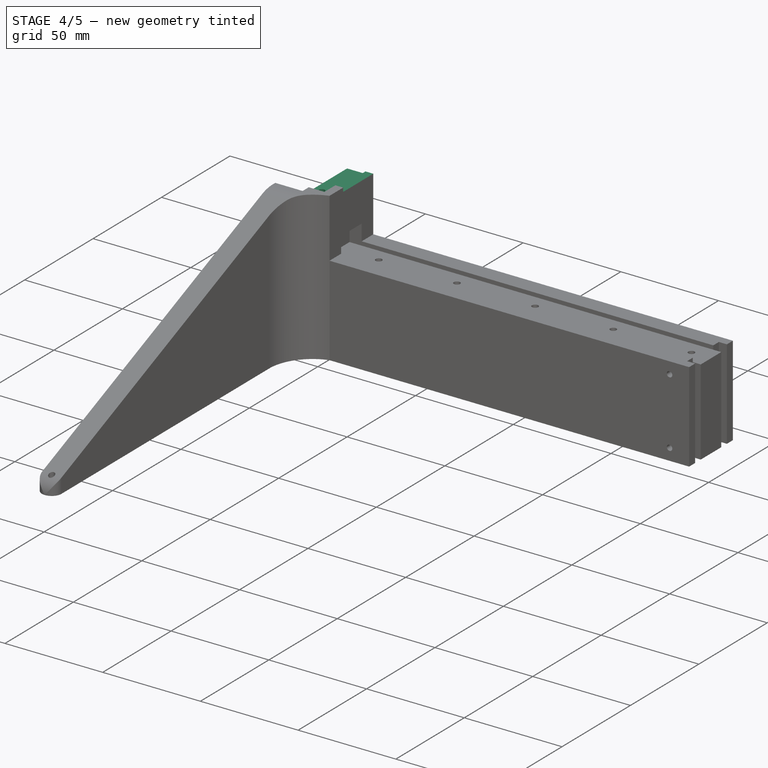
[diagram: stage 4 of 5 — iso view after this stage's code; geometry added in this stage tinted green]
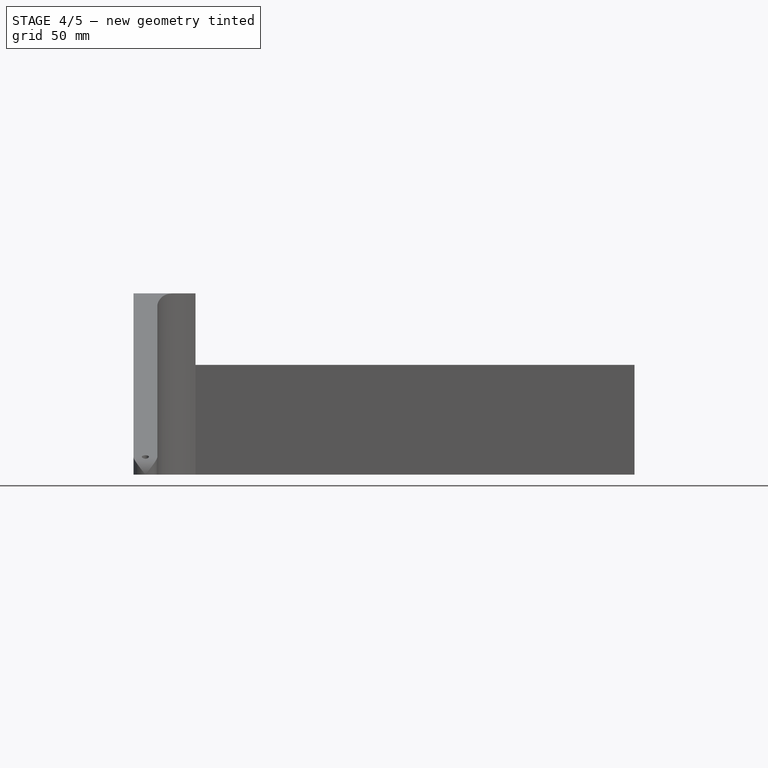
[diagram: stage 4 of 5 — front view after this stage's code; geometry added in this stage tinted green]
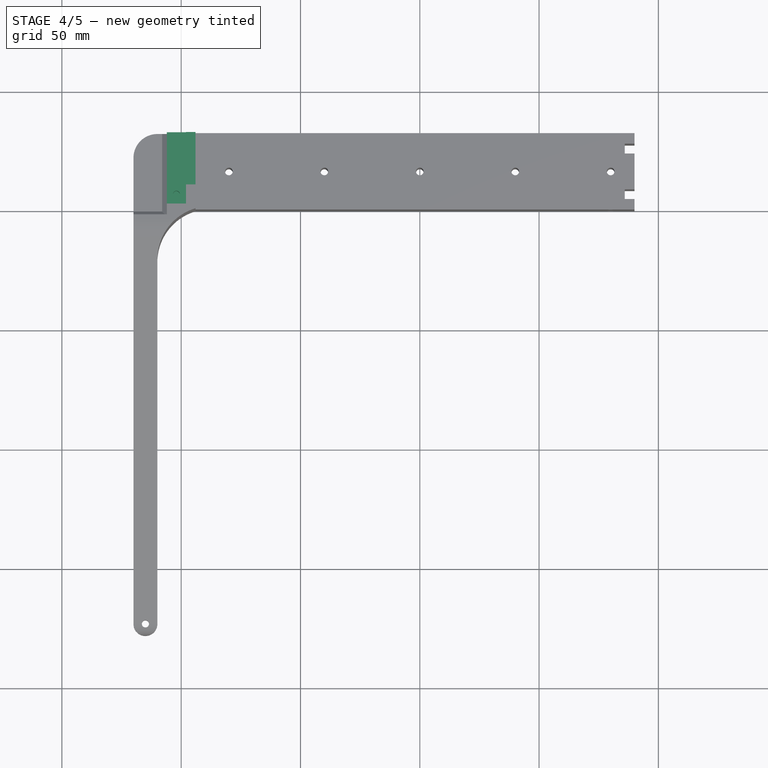
[diagram: stage 4 of 5 — top view after this stage's code; geometry added in this stage tinted green]
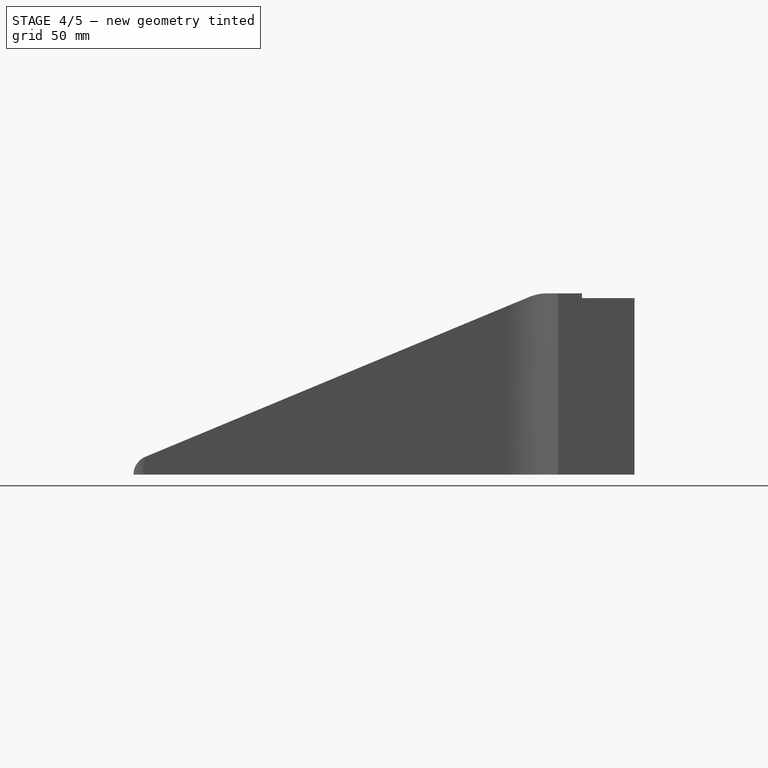
[diagram: stage 4 of 5 — right view after this stage's code; geometry added in this stage tinted green]
FEATURE [Sketcher::SketchObject] Sketch015  label="Sketch Motor Mount Holes Side"
  ExternalGeometry = -> [Pocket010]
  MapMode = 5
  Placement = pos=(-220,0,0) rot=(0.57735,-0.57735,-0.57735;2.0944rad)
  Support = -> [Pocket010]
  expr: Constraints[5] = Screws.m3td
  sketch-geometry (2):
    g0: Circle CenterX=6.5 CenterY=47.25 CenterZ=0 NormalX=0 NormalY=0 NormalZ=1 AngleXU=0 Radius=1.4
    g1: Circle CenterX=6.5 CenterY=71 CenterZ=0 NormalX=0 NormalY=0 NormalZ=1 AngleXU=0 Radius=1.4
  constraints (6):
    c: Equal(g1,g0)
    c: Vertical(g0,g1)
    c: Distance(g0,g1) = 23.75
    c: DistanceX(g-3,g1) = 4
    c: DistanceY(g1,g-3) = 5
    c: Diameter(g0) = 2.8
FEATURE [PartDesign::Pocket] Pocket011  label="Motor Mount Holes Side"
  BaseFeature = -> Pocket010
  Length = 13
  Length2 = 100
  Profile = -> Sketch015
  Type = 0
  expr: Length = Screws.m3tl + 1mm
FEATURE [Sketcher::SketchObject] Sketch027  label="Sketch Pulley Cage Bottom Cut"
  ExternalGeometry = -> [Pocket011]
  MapMode = 5
  Placement = pos=(0,0,76) rot=(0,0,1;0rad)
  Support = -> [Pocket011]
  sketch-geometry (6):
    g0: LineSegment StartX=-194 StartY=10 StartZ=0 EndX=-194 EndY=32 EndZ=0
    g1: LineSegment StartX=-194 StartY=32 StartZ=0 EndX=-206 EndY=32 EndZ=0
    g2: LineSegment StartX=-206 StartY=32 StartZ=0 EndX=-206 EndY=2 EndZ=0
    g3: LineSegment StartX=-206 StartY=2 StartZ=0 EndX=-198 EndY=2 EndZ=0
    g4: LineSegment StartX=-198 StartY=2 StartZ=0 EndX=-198 EndY=10 EndZ=0
    g5: LineSegment StartX=-198 StartY=10 StartZ=0 EndX=-194 EndY=10 EndZ=0
  constraints (16):
    c: PointOnObject(g0,g-3)
    c: Coincident(g0,g-3)
    c: Coincident(g0,g1)
    c: Coincident(g1,g-4)
    c: Coincident(g1,g2)
    c: PointOnObject(g2,g-4)
    c: Coincident(g2,g3)
    c: Horizontal(g3)
    c: Coincident(g3,g4)
    c: Vertical(g4)
    c: Coincident(g4,g5)
    c: Coincident(g5,g0)
    c: Horizontal(g5)
    c: Distance(g0) = 22
    c: Distance(g4) = 8
    c: Distance(g3) = 8
FEATURE [PartDesign::Pocket] Pocket012  label="Pulley Cage Bottom Cut"
  BaseFeature = -> Pocket011
  Length = 2
  Length2 = 100
  Profile = -> Sketch027
  Type = 0
FEATURE [Sketcher::SketchObject] Sketch028  label="Sketch Pulley Cage Pad Cut"
  ExternalGeometry = -> [Pocket012]
  MapMode = 5
  Placement = pos=(0,32,0) rot=(0,0.707107,0.707107;3.14159rad)
  Support = -> [Pocket012]
  sketch-geometry (6):
    g0: LineSegment StartX=206 StartY=74 StartZ=0 EndX=198 EndY=74 EndZ=0
    g1: LineSegment StartX=198 StartY=74 StartZ=0 EndX=198 EndY=67 EndZ=0
    g2: LineSegment StartX=198 StartY=67 StartZ=0 EndX=206 EndY=67 EndZ=0
    g3: LineSegment StartX=206 StartY=67 StartZ=0 EndX=206 EndY=74 EndZ=0
    g4: LineSegment [constr] StartX=202 StartY=71 StartZ=0 EndX=206 EndY=71 EndZ=0
    g5: LineSegment [constr] StartX=202 StartY=71 StartZ=0 EndX=202 EndY=67 EndZ=0
  constraints (17):
    c: Coincident(g0,g1)
    c: Coincident(g1,g2)
    c: Coincident(g2,g3)
    c: Coincident(g3,g0)
    c: Horizontal(g2)
    c: Vertical(g1)
    c: Vertical(g3)
    c: Coincident(g0,g-3)
    c: Coincident(g4,g-4)
    c: PointOnObject(g4,g3)
    c: Horizontal(g4)
    c: Coincident(g5,g4)
    c: PointOnObject(g5,g2)
    c: Vertical(g5)
    c: Equal(g4,g5)
    c: Coincident(g0,g-5)
    c: Distance(g1) = 7
FEATURE [PartDesign::Pocket] Pocket013  label="Pulley Cage Pad Cut"
  BaseFeature = -> Pocket012
  Length = 2
  Length2 = 100
  Profile = -> Sketch028
  Type = 0
FEATURE [Sketcher::SketchObject] Sketch029  label="Sketch Pulley Cage Hole"
  ExternalGeometry = -> [Pocket013]
  MapMode = 5
  Placement = pos=(0,0,74) rot=(0,0,1;0rad)
  Support = -> [Pocket013]
  expr: Constraints[6] = Screws.m3td
  sketch-geometry (3):
    g0: Circle CenterX=-202 CenterY=6 CenterZ=0 NormalX=0 NormalY=0 NormalZ=1 AngleXU=0 Radius=1.4
    g1: LineSegment [constr] StartX=-206 StartY=2 StartZ=0 EndX=-202 EndY=6 EndZ=0
    g2: LineSegment [constr] StartX=-198 StartY=10 StartZ=0 EndX=-202 EndY=6 EndZ=0
  constraints (7):
    c: Coincident(g1,g-4)
    c: Coincident(g1,g0)
    c: Coincident(g2,g-3)
    c: Coincident(g2,g0)
    c: Equal(g1,g2)
    c: Parallel(g2,g1)
    c: Diameter(g0) = 2.8
FEATURE [PartDesign::Pocket] Pocket014  label="Pulley Cage Hole"
  BaseFeature = -> Pocket013
  Length = 11
  Length2 = 100
  Profile = -> Sketch029
  Type = 0
  expr: Length = Screws.m3tl - 1mm
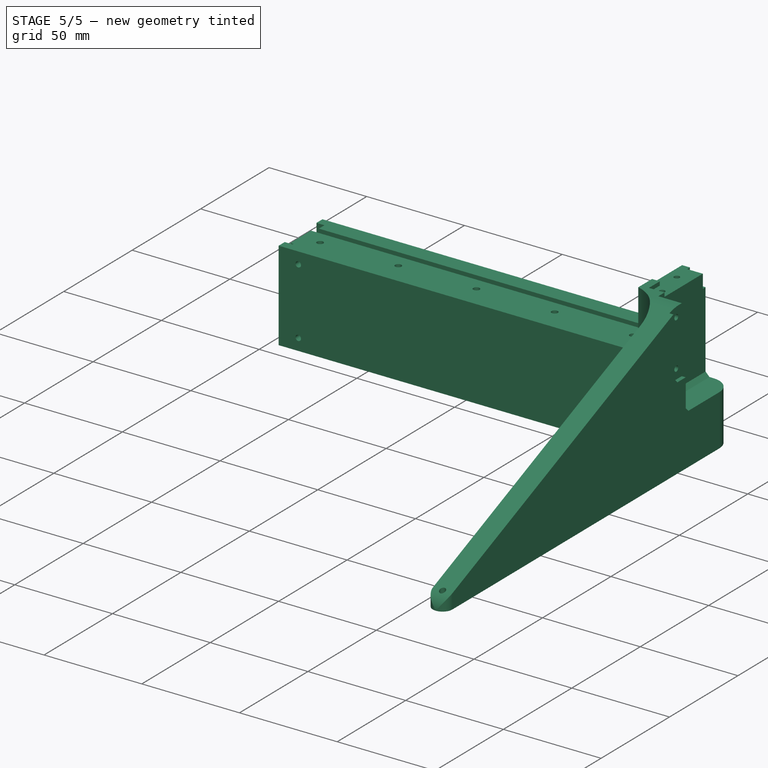
[diagram: stage 5 of 5 — iso view after this stage's code; geometry added in this stage tinted green]
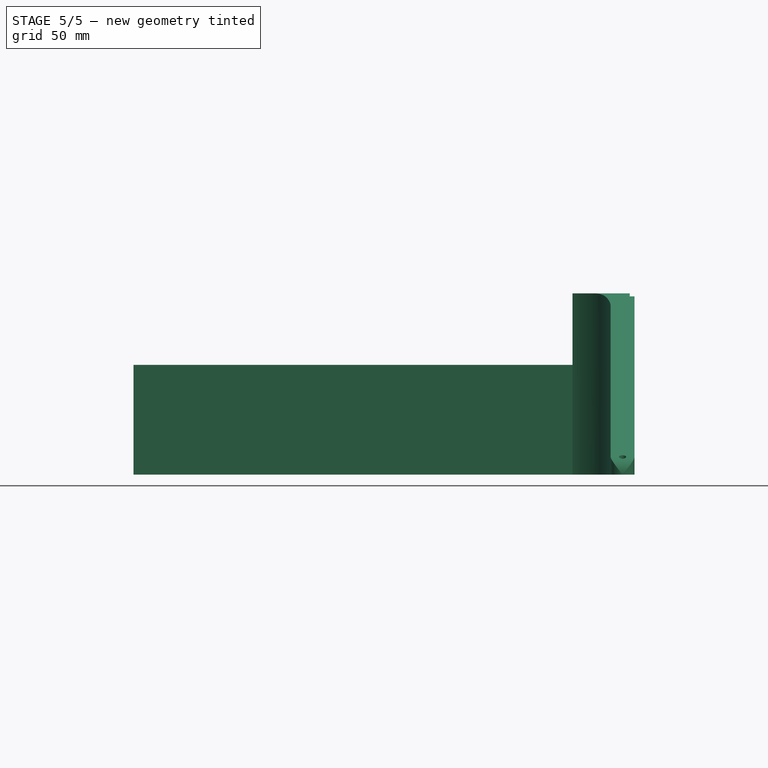
[diagram: stage 5 of 5 — front view after this stage's code; geometry added in this stage tinted green]
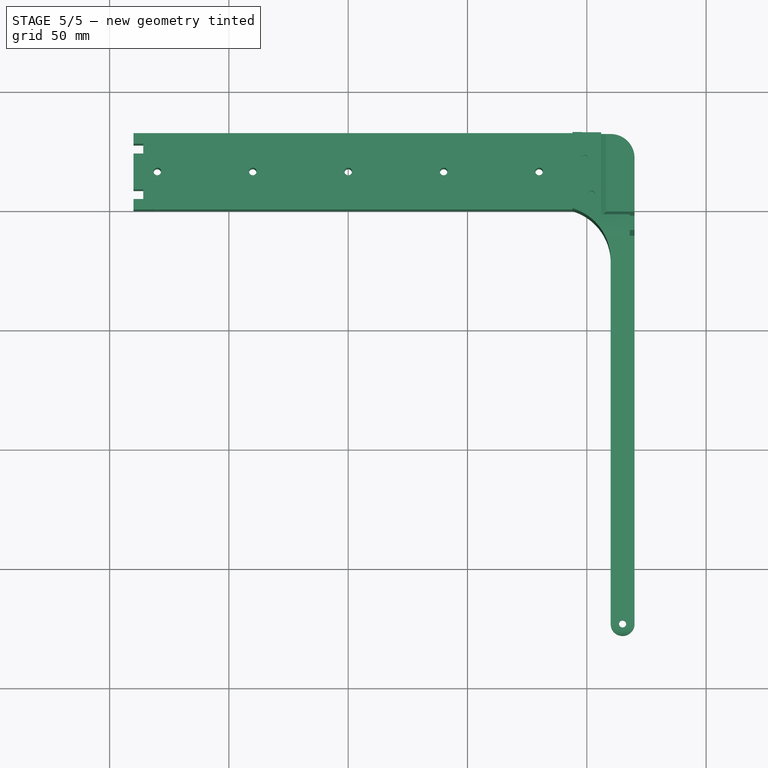
[diagram: stage 5 of 5 — top view after this stage's code; geometry added in this stage tinted green]
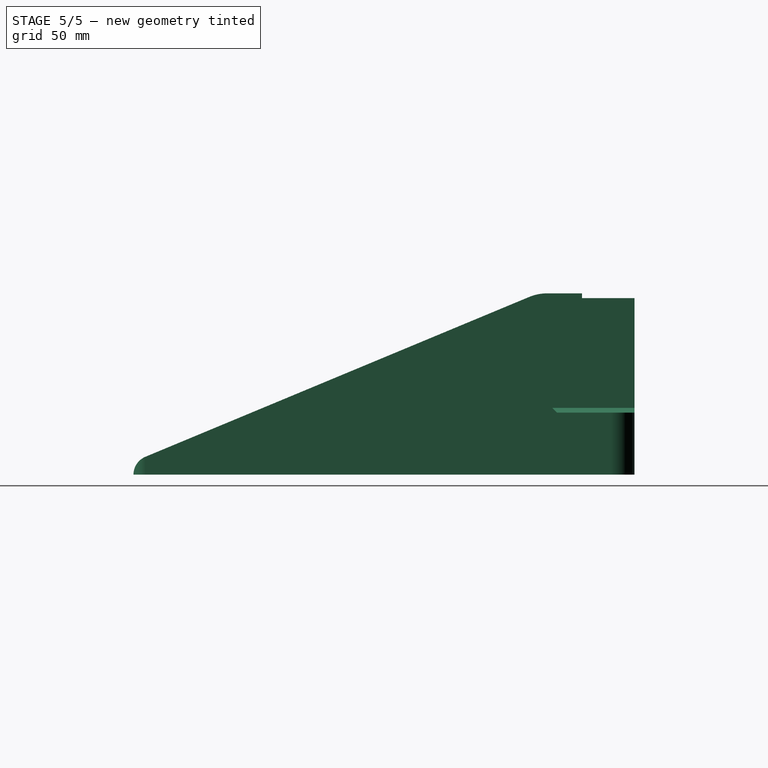
[diagram: stage 5 of 5 — right view after this stage's code; geometry added in this stage tinted green]
FEATURE [Sketcher::SketchObject] Sketch030  label="Sketch Pulley Hole"
  ExternalGeometry = -> [Pocket012]
  MapMode = 5
  Placement = pos=(0,0,74) rot=(0,0,1;0rad)
  Support = -> [Pocket012]
  expr: Constraints[0] = Screws.m3d
  sketch-geometry (2):
    g0: Circle CenterX=-199 CenterY=21 CenterZ=0 NormalX=0 NormalY=0 NormalZ=1 AngleXU=0 Radius=1.4
    g1: LineSegment [constr] StartX=-199 StartY=21 StartZ=0 EndX=-194 EndY=21 EndZ=0
  constraints (5):
    c: Diameter(g0) = 2.8
    c: Coincident(g1,g0)
    c: PointOnObject(g1,g-3)
    c: Symmetric(g-3,g-3,g1)
    c: Distance(g1) = 5
FEATURE [PartDesign::Pocket] Pocket015  label="Pulley Hole"
  BaseFeature = -> Pocket014
  Length = 8
  Length2 = 100
  Profile = -> Sketch030
  Type = 0
  expr: Length = Screws.m3l - 22mm
FEATURE [Sketcher::SketchObject] Sketch031  label="Sketch Motor Mount Side Pad Cut"
  ExternalGeometry = -> [Pocket015]
  MapMode = 5
  Placement = pos=(-220,0,0) rot=(0.57735,-0.57735,-0.57735;2.0944rad)
  Support = -> [Pocket015]
  sketch-geometry (5):
    g0: LineSegment StartX=2.5 StartY=76 StartZ=0 EndX=11.5 EndY=76 EndZ=0
    g1: LineSegment StartX=11.5 StartY=76 StartZ=0 EndX=11.5 EndY=45.25 EndZ=0
    g2: LineSegment StartX=11.5 StartY=45.25 StartZ=0 EndX=8.5 EndY=42.25 EndZ=0
    g3: LineSegment StartX=8.5 StartY=42.25 StartZ=0 EndX=2.5 EndY=42.25 EndZ=0
    g4: LineSegment StartX=2.5 StartY=42.25 StartZ=0 EndX=2.5 EndY=76 EndZ=0
  constraints (14):
    c: Coincident(g-3,g0)
    c: Horizontal(g0)
    c: Coincident(g0,g1)
    c: Vertical(g1)
    c: Coincident(g1,g2)
    c: Coincident(g2,g3)
    c: PointOnObject(g3,g-3)
    c: Horizontal(g3)
    c: Coincident(g3,g4)
    c: Coincident(g4,g0)
    c: Distance(g0) = 9
    c: Distance(g4) = 33.75
    c: DistanceY(g2,g1) = 3
    c: DistanceX(g2,g1) = 3
FEATURE [PartDesign::Pocket] Pocket016  label="Motor Mount Side Pad Cut"
  BaseFeature = -> Pocket015
  Length = 2
  Length2 = 100
  Profile = -> Sketch031
  Type = 0
FEATURE [Part::Mirroring] Part__Mirroring  label="Base Right (Mirror)"
  Base = (0,0,0)
  Normal = (1,0,0)
  Source = -> Body
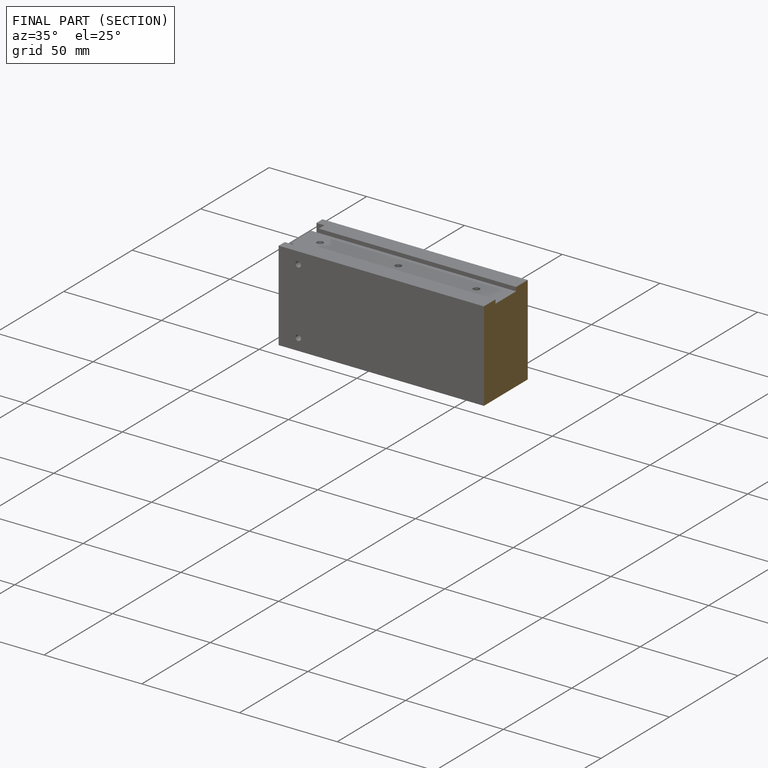
[diagram: finished part — half-section view (interior)]
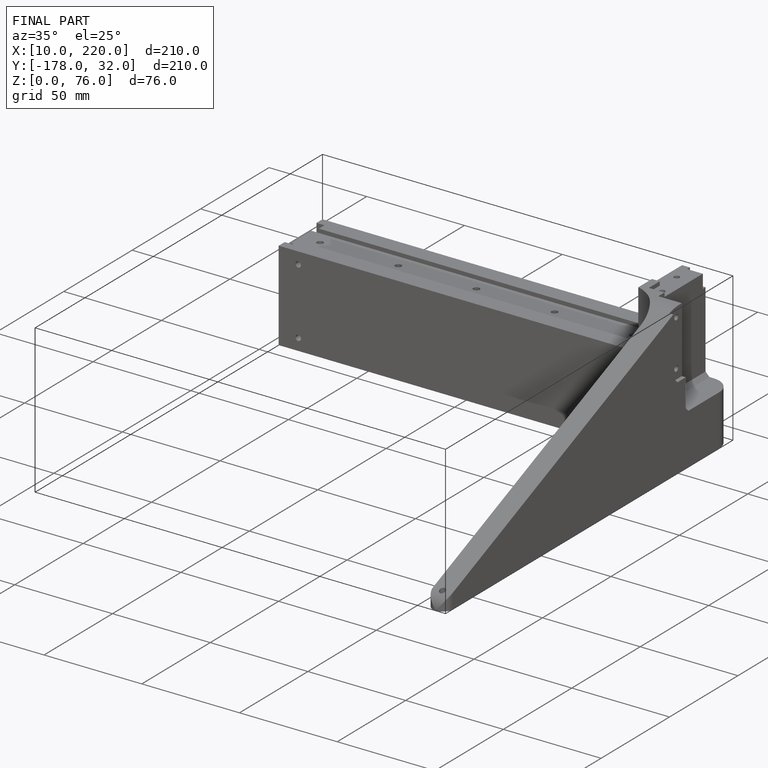
[diagram: finished part — iso view with bounding-box wireframe]
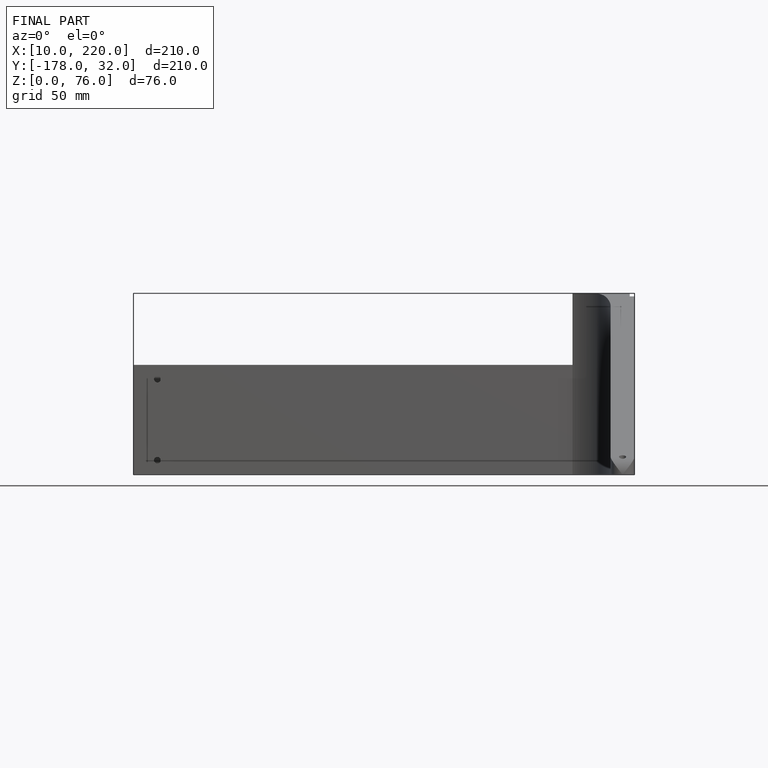
[diagram: finished part — front view with bounding-box wireframe]
